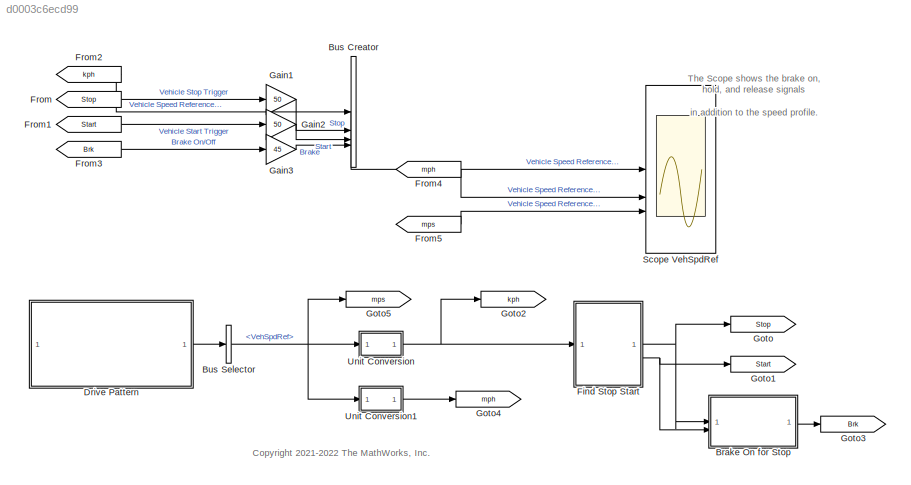
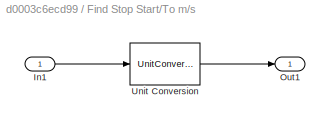
MODEL mdl_d0003c6ecd99
KIND model
CONFIG AbsTol = 1e-3
CONFIG EnableMultiTasking = off
CONFIG FixedStep = auto
CONFIG MaxStep = auto
CONFIG MinStep = auto
CONFIG PreLoadFcn = DrivePattern_harness_setup
CONFIG RelTol = 1e-3
CONFIG SampleTimeConstraint = Unconstrained
CONFIG SolverName = VariableStepAuto
CONFIG StartTime = 0.0
CONFIG StopTime = t_end
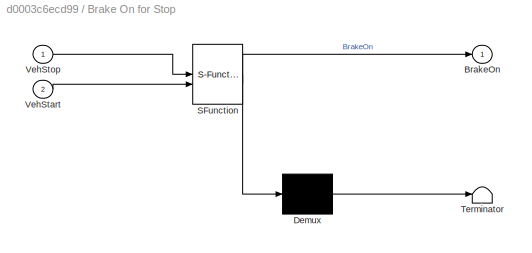
BLOCK [SubSystem] Brake On for Stop
  ErrorFcn = Stateflow.Translate.translate
  PermitHierarchicalResolution = ExplicitOnly
  SFBlockType = Chart
  TreatAsAtomicUnit = on
BLOCK [Demux] Brake On for Stop/ Demux 
  Outputs = 1
BLOCK [S-Function] Brake On for Stop/ SFunction 
  EnableBusSupport = on
  FunctionName = sf_sfun
  PortCounts = [2 2]
  SFcnIsStateOwnerBlock = off
  SFunctionDeploymentMode = off
  Tag = Stateflow S-Function 1
BLOCK [Terminator] Brake On for Stop/ Terminator 
BLOCK [Outport] Brake On for Stop/BrakeOn
BLOCK [Inport] Brake On for Stop/VehStart
  Port = 2
BLOCK [Inport] Brake On for Stop/VehStop
BLOCK [BusCreator] Bus Creator
  DisplayOption = bar
  InheritFromInputs = on
  Inputs = 4
BLOCK [BusSelector] Bus Selector
  OutputSignals = VehSpdRef
BLOCK [SubSystem] Drive Pattern
  ReferencedSubsystem = DrivePattern_refsub
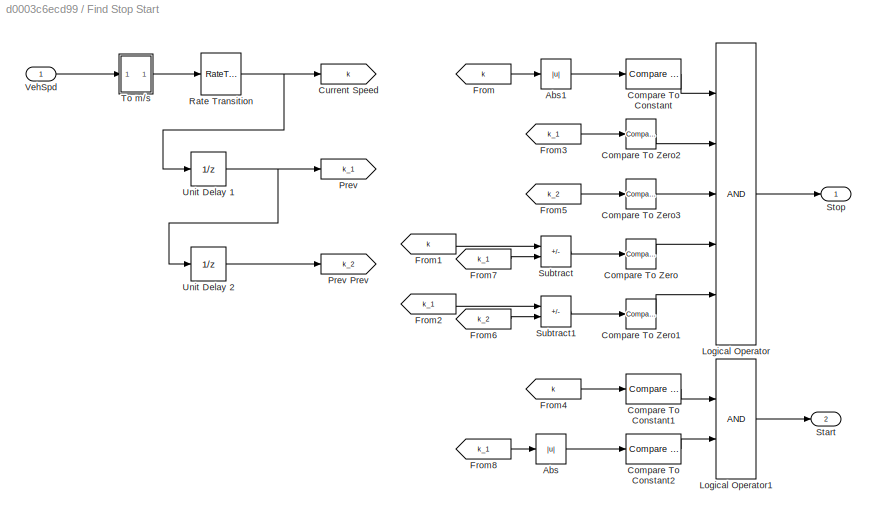
BLOCK [SubSystem] Find Stop Start
BLOCK [Abs] Find Stop Start/Abs
  SaturateOnIntegerOverflow = off
BLOCK [Abs] Find Stop Start/Abs1
  SaturateOnIntegerOverflow = off
BLOCK [Reference] Find Stop Start/Compare To Constant  REF=simulink/Logic and Bit
Operations/Compare
To Constant
  SourceBlock = simulink/Logic and Bit\nOperations/Compare\nTo Constant
  SourceType = Compare To Constant
BLOCK [Reference] Find Stop Start/Compare To Constant1  REF=simulink/Logic and Bit
Operations/Compare
To Constant
  SourceBlock = simulink/Logic and Bit\nOperations/Compare\nTo Constant
  SourceType = Compare To Constant
BLOCK [Reference] Find Stop Start/Compare To Constant2  REF=simulink/Logic and Bit
Operations/Compare
To Constant
  SourceBlock = simulink/Logic and Bit\nOperations/Compare\nTo Constant
  SourceType = Compare To Constant
BLOCK [Reference] Find Stop Start/Compare To Zero  REF=simulink/Logic and Bit
Operations/Compare
To Zero
  SourceBlock = simulink/Logic and Bit\nOperations/Compare\nTo Zero
  SourceType = Compare To Zero
BLOCK [Reference] Find Stop Start/Compare To Zero1  REF=simulink/Logic and Bit
Operations/Compare
To Zero
  SourceBlock = simulink/Logic and Bit\nOperations/Compare\nTo Zero
  SourceType = Compare To Zero
BLOCK [Reference] Find Stop Start/Compare To Zero2  REF=simulink/Logic and Bit
Operations/Compare
To Zero
  SourceBlock = simulink/Logic and Bit\nOperations/Compare\nTo Zero
  SourceType = Compare To Zero
BLOCK [Reference] Find Stop Start/Compare To Zero3  REF=simulink/Logic and Bit
Operations/Compare
To Zero
  SourceBlock = simulink/Logic and Bit\nOperations/Compare\nTo Zero
  SourceType = Compare To Zero
BLOCK [Goto] Find Stop Start/Current Speed
  GotoTag = k
BLOCK [From] Find Stop Start/From
  GotoTag = k
BLOCK [From] Find Stop Start/From1
  GotoTag = k
BLOCK [From] Find Stop Start/From2
  GotoTag = k_1
BLOCK [From] Find Stop Start/From3
  GotoTag = k_1
BLOCK [From] Find Stop Start/From4
  GotoTag = k
BLOCK [From] Find Stop Start/From5
  GotoTag = k_2
BLOCK [From] Find Stop Start/From6
  GotoTag = k_2
BLOCK [From] Find Stop Start/From7
  GotoTag = k_1
BLOCK [From] Find Stop Start/From8
  GotoTag = k_1
BLOCK [Logic] Find Stop Start/Logical Operator
  AllPortsSameDT = off
  Inputs = 5
  OutDataTypeStr = boolean
BLOCK [Logic] Find Stop Start/Logical Operator1
  AllPortsSameDT = off
  OutDataTypeStr = boolean
BLOCK [Goto] Find Stop Start/Prev
  GotoTag = k_1
BLOCK [Goto] Find Stop Start/Prev Prev
  GotoTag = k_2
BLOCK [RateTransition] Find Stop Start/Rate Transition
  AttributesFormatString = Sample Time: %<OutPortSampleTime>
  OutPortSampleTime = 1
BLOCK [Outport] Find Stop Start/Start
  OutDataTypeStr = boolean
  Port = 2
BLOCK [Outport] Find Stop Start/Stop
  OutDataTypeStr = boolean
BLOCK [Sum] Find Stop Start/Subtract
  IconShape = rectangular
  Inputs = +-
BLOCK [Sum] Find Stop Start/Subtract1
  IconShape = rectangular
  Inputs = +-
BLOCK [SubSystem] Find Stop Start/To m//s
  ShowPortLabels = none
BLOCK [Inport] Find Stop Start/To m//s/In1
  Unit = km/hr
BLOCK [Outport] Find Stop Start/To m//s/Out1
  Unit = m/s
BLOCK [UnitConversion] Find Stop Start/To m//s/Unit Conversion
BLOCK [UnitDelay] Find Stop Start/Unit Delay 1
  AttributesFormatString = Sample Time: %<SampleTime>
  HasFrameUpgradeWarning = on
BLOCK [UnitDelay] Find Stop Start/Unit Delay 2
  AttributesFormatString = Sample Time: %<SampleTime>
  HasFrameUpgradeWarning = on
BLOCK [Inport] Find Stop Start/VehSpd
  Unit = km/hr
BLOCK [From] From
  GotoTag = Stop
BLOCK [From] From1
  GotoTag = Start
BLOCK [From] From2
  GotoTag = kph
BLOCK [From] From3
  GotoTag = Brk
BLOCK [From] From4
  GotoTag = mph
BLOCK [From] From5
  GotoTag = mps
BLOCK [Gain] Gain1
  Gain = 50
  OutDataTypeStr = double
BLOCK [Gain] Gain2
  Gain = 50
  OutDataTypeStr = double
BLOCK [Gain] Gain3
  Gain = 45
  OutDataTypeStr = double
BLOCK [Goto] Goto
  GotoTag = Stop
BLOCK [Goto] Goto1
  GotoTag = Start
BLOCK [Goto] Goto2
  GotoTag = kph
BLOCK [Goto] Goto3
  GotoTag = Brk
BLOCK [Goto] Goto4
  GotoTag = mph
BLOCK [Goto] Goto5
  GotoTag = mps
BLOCK [Scope] Scope VehSpdRef
  Floating = off
  NumInputPorts = 3
  ScopeSpecificationString = Simulink.scopes.TimeScopeBlockCfg('CurrentConfiguration', extmgr.ConfigurationSet(extmgr.Configuration('Core','General UI',true),extmgr.Configuration('Core','Source UI',true),extmgr.Configuration('Sources','WiredSimulink',true),extmgr.Configuration('Visuals','Time Domain',true,'SerializedDisplays',{struct('MinYLimReal','-12.5','MaxYLimReal','112.5','YLabelReal','','MinYLimMag','0.00000','MaxYLimMa...<+3056ch>
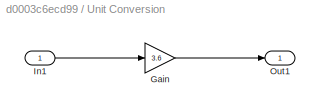
BLOCK [SubSystem] Unit Conversion
  ShowPortLabels = none
BLOCK [Gain] Unit Conversion/Gain
  Gain = 3.6
BLOCK [Inport] Unit Conversion/In1
  Unit = m/s
BLOCK [Outport] Unit Conversion/Out1
  OutDataTypeStr = double
  Unit = km/hr
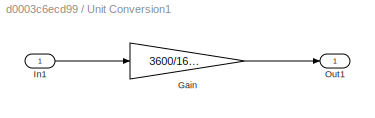
BLOCK [SubSystem] Unit Conversion1
  ShowPortLabels = none
BLOCK [Gain] Unit Conversion1/Gain
  Gain = 3600/1609.344
BLOCK [Inport] Unit Conversion1/In1
  Unit = m/s
BLOCK [Outport] Unit Conversion1/Out1
  OutDataTypeStr = double
  Unit = mph
ANNOTATION (root): <copyright redacted>
ANNOTATION (root): The Scope shows the brake on, hold, and release signals in addition to the speed profile.
LINE Brake On for Stop:1 -> Goto3:1
LINE Bus Creator:1 -> Scope VehSpdRef:1
NET Bus Selector:1 -> Goto5:1, Unit Conversion1:1, Unit Conversion:1
LINE Drive Pattern:1 -> Bus Selector:1
LINE Find Stop Start/Abs1:1 -> Find Stop Start/Compare To Constant:1
LINE Find Stop Start/Abs:1 -> Find Stop Start/Compare To Constant2:1
LINE Find Stop Start/Compare To Constant1:1 -> Find Stop Start/Logical Operator1:1
LINE Find Stop Start/Compare To Constant2:1 -> Find Stop Start/Logical Operator1:2
LINE Find Stop Start/Compare To Constant:1 -> Find Stop Start/Logical Operator:1
LINE Find Stop Start/Compare To Zero1:1 -> Find Stop Start/Logical Operator:5
LINE Find Stop Start/Compare To Zero2:1 -> Find Stop Start/Logical Operator:2
LINE Find Stop Start/Compare To Zero3:1 -> Find Stop Start/Logical Operator:3
LINE Find Stop Start/Compare To Zero:1 -> Find Stop Start/Logical Operator:4
LINE Find Stop Start/From1:1 -> Find Stop Start/Subtract:1
LINE Find Stop Start/From2:1 -> Find Stop Start/Subtract1:1
LINE Find Stop Start/From3:1 -> Find Stop Start/Compare To Zero2:1
LINE Find Stop Start/From4:1 -> Find Stop Start/Compare To Constant1:1
LINE Find Stop Start/From5:1 -> Find Stop Start/Compare To Zero3:1
LINE Find Stop Start/From6:1 -> Find Stop Start/Subtract1:2
LINE Find Stop Start/From7:1 -> Find Stop Start/Subtract:2
LINE Find Stop Start/From8:1 -> Find Stop Start/Abs:1
LINE Find Stop Start/From:1 -> Find Stop Start/Abs1:1
LINE Find Stop Start/Logical Operator1:1 -> Find Stop Start/Start:1
LINE Find Stop Start/Logical Operator:1 -> Find Stop Start/Stop:1
NET Find Stop Start/Rate Transition:1 -> Find Stop Start/Current Speed:1, Find Stop Start/Unit Delay 1:1
LINE Find Stop Start/Subtract1:1 -> Find Stop Start/Compare To Zero1:1
LINE Find Stop Start/Subtract:1 -> Find Stop Start/Compare To Zero:1
LINE Find Stop Start/To m//s/In1:1 -> Find Stop Start/To m//s/Unit Conversion:1
LINE Find Stop Start/To m//s/Unit Conversion:1 -> Find Stop Start/To m//s/Out1:1
LINE Find Stop Start/To m//s:1 -> Find Stop Start/Rate Transition:1
NET Find Stop Start/Unit Delay 1:1 -> Find Stop Start/Prev:1, Find Stop Start/Unit Delay 2:1
LINE Find Stop Start/Unit Delay 2:1 -> Find Stop Start/Prev Prev:1
LINE Find Stop Start/VehSpd:1 -> Find Stop Start/To m//s:1
NET Find Stop Start:1 -> Brake On for Stop:1, Goto:1
NET Find Stop Start:2 -> Brake On for Stop:2, Goto1:1
LINE From1:1 -> Gain2:1
LINE From2:1 -> Bus Creator:1
LINE From3:1 -> Gain3:1
LINE From4:1 -> Scope VehSpdRef:2
LINE From5:1 -> Scope VehSpdRef:3
LINE From:1 -> Gain1:1
LINE Gain1:1 -> Bus Creator:2
LINE Gain2:1 -> Bus Creator:3
LINE Gain3:1 -> Bus Creator:4
LINE Unit Conversion/Gain:1 -> Unit Conversion/Out1:1
LINE Unit Conversion/In1:1 -> Unit Conversion/Gain:1
LINE Unit Conversion1/Gain:1 -> Unit Conversion1/Out1:1
LINE Unit Conversion1/In1:1 -> Unit Conversion1/Gain:1
LINE Unit Conversion1:1 -> Goto4:1
NET Unit Conversion:1 -> Find Stop Start:1, Goto2:1
note: NET lines group one-source signal fan-out (src -> all destinations, sorted); 1:1 wires keep LINE
CHART Brake On for Stop states=3 transitions=7
  STATE_LABEL 'BrakeOn\nentry:\n  BrakeOn = true;'
  STATE_LABEL 'Initial'
  STATE_LABEL 'BrakeOff\nentry:\n  BrakeOn = false;'
CHART  states=0 transitions=0
